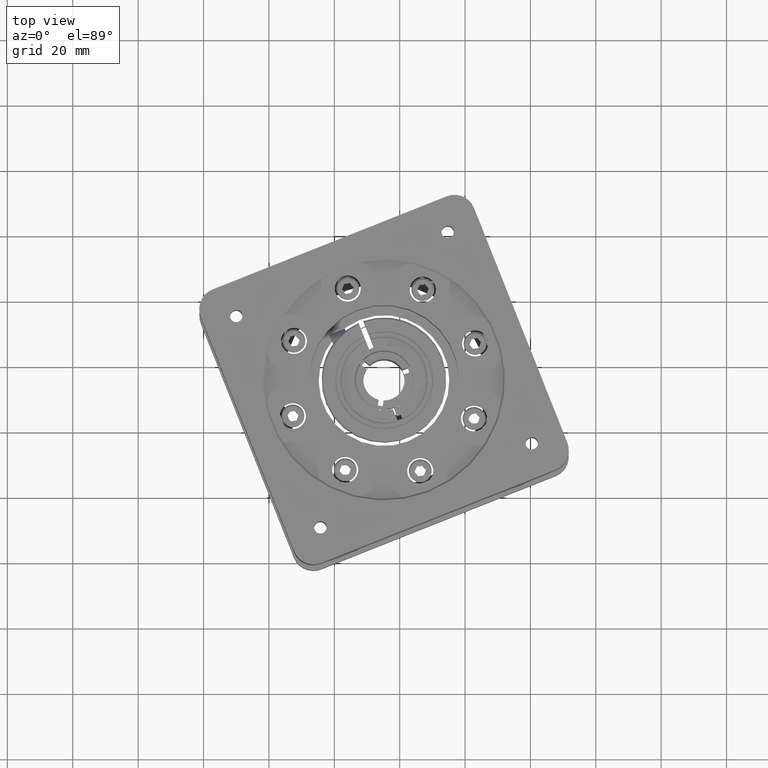
[diagram: clean part render]
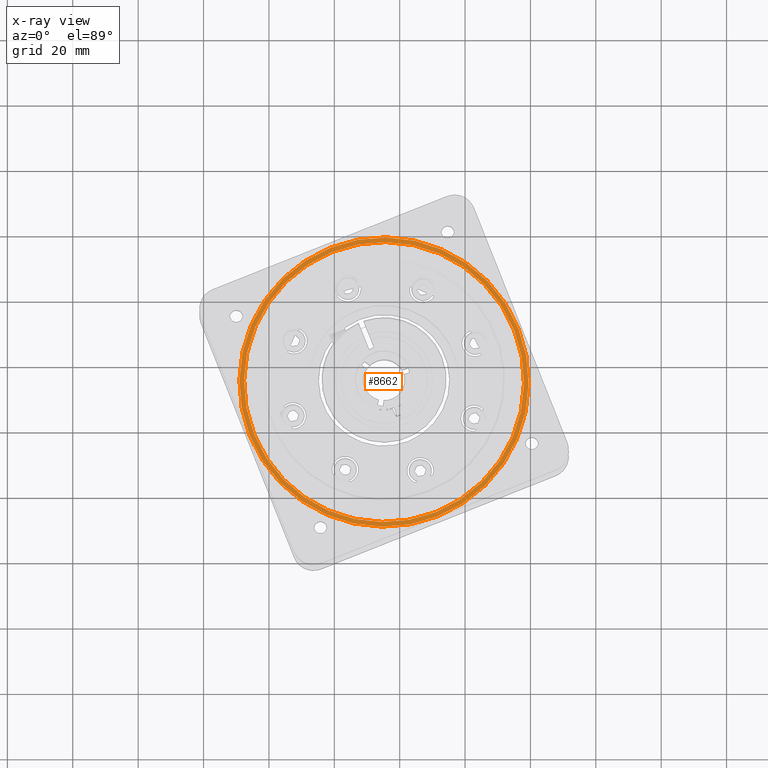
[diagram: x-ray — body ghosted, one internal face saturated and labeled with its STEP entity id]
A machine part, top view, then the same camera in x-ray: the body is ghosted and one INTERNAL B-rep face — a face not visible from any outside direction — is saturated and labeled: STEP entity #8662.
In plain terms, the highlighted planar face has unit normal (-0, -0, 1).
Its self-contained STEP definition (entity closure, byte-faithful):
#182 = ORIENTED_EDGE ( 'NONE', *, *, #11878, .F. ) ;
#256 = DIRECTION ( 'NONE',  ( 1.267242450402895730E-14, 1.075671488818361258E-14, -1.000000000000000000 ) ) ;
#263 = CIRCLE ( 'NONE', #4123, 44.25000000000000711 ) ;
#2071 = CARTESIAN_POINT ( 'NONE',  ( -61.97274178319740656, 132.9558945401735457, 173.8901539304251287 ) ) ;
#2311 = DIRECTION ( 'NONE',  ( 0.9999014065405876783, -0.01404197985165333423, 1.252012951212810717E-14 ) ) ;
#3007 = CARTESIAN_POINT ( 'NONE',  ( -104.7977191042055267, 133.5573013036359669, 173.8901539304245887 ) ) ;
#3102 = CARTESIAN_POINT ( 'NONE',  ( -60.55208186478451893, 132.9359436952003080, 173.8901539304251571 ) ) ;
#3194 = VERTEX_POINT ( 'NONE', #3102 ) ;
#3696 = VERTEX_POINT ( 'NONE', #8511 ) ;
#3715 = PLANE ( 'NONE',  #15051 ) ;
#3976 = EDGE_CURVE ( 'NONE', #3194, #14882, #14460, .T. ) ;
#4055 = DIRECTION ( 'NONE',  ( 0.9999014065405877894, -0.01404197985165315035, 1.254489293361758563E-14 ) ) ;
#4123 = AXIS2_PLACEMENT_3D ( 'NONE', #12904, #15497, #14371 ) ;
#4516 = DIRECTION ( 'NONE',  ( -1.267242450402895730E-14, -1.075671488818361258E-14, 1.000000000000000000 ) ) ;
#5052 = CARTESIAN_POINT ( 'NONE',  ( -149.0433563436265274, 134.1786589120717395, 173.8901539304240487 ) ) ;
#6096 = FACE_BOUND ( 'NONE', #12635, .T. ) ;
#6171 = DIRECTION ( 'NONE',  ( -1.267242450402895415E-14, -1.075671488818360943E-14, 1.000000000000000000 ) ) ;
#6283 = CARTESIAN_POINT ( 'NONE',  ( -155.6613423448364699, 194.4755334156081972, 173.8901539304245887 ) ) ;
#6530 = EDGE_CURVE ( 'NONE', #14882, #3194, #263, .T. ) ;
#8327 = DIRECTION ( 'NONE',  ( 0.9999014065405877894, -0.01404197985165333944, 1.231299993221796400E-14 ) ) ;
#8511 = CARTESIAN_POINT ( 'NONE',  ( -147.6226964252136327, 134.1587080670983880, 173.8901539304240487 ) ) ;
#8662 = ADVANCED_FACE ( 'NONE', ( #8724, #6096 ), #3715, .T. ) ;
#8724 = FACE_OUTER_BOUND ( 'NONE', #12803, .T. ) ;
#8771 = ORIENTED_EDGE ( 'NONE', *, *, #6530, .F. ) ;
#9044 = AXIS2_PLACEMENT_3D ( 'NONE', #3007, #4516, #8327 ) ;
#9153 = CIRCLE ( 'NONE', #12333, 42.82919999999997884 ) ;
#9458 = DIRECTION ( 'NONE',  ( 0.9999014065405877894, -0.01404197985165333944, 1.231299993221796400E-14 ) ) ;
#10765 = CARTESIAN_POINT ( 'NONE',  ( -104.7977191042055267, 133.5573013036359669, 173.8901539304245887 ) ) ;
#10942 = VERTEX_POINT ( 'NONE', #2071 ) ;
#10972 = ORIENTED_EDGE ( 'NONE', *, *, #3976, .F. ) ;
#11016 = AXIS2_PLACEMENT_3D ( 'NONE', #15726, #256, #4055 ) ;
#11878 = EDGE_CURVE ( 'NONE', #10942, #3696, #9153, .T. ) ;
#12333 = AXIS2_PLACEMENT_3D ( 'NONE', #10765, #15998, #9458 ) ;
#12635 = EDGE_LOOP ( 'NONE', ( #182, #16428 ) ) ;
#12803 = EDGE_LOOP ( 'NONE', ( #10972, #8771 ) ) ;
#12904 = CARTESIAN_POINT ( 'NONE',  ( -104.7977191042055267, 133.5573013036359669, 173.8901539304245887 ) ) ;
#14371 = DIRECTION ( 'NONE',  ( 0.9999014065405877894, -0.01404197985165315035, 1.254489293361758563E-14 ) ) ;
#14460 = CIRCLE ( 'NONE', #11016, 44.25000000000000711 ) ;
#14882 = VERTEX_POINT ( 'NONE', #5052 ) ;
#15051 = AXIS2_PLACEMENT_3D ( 'NONE', #6283, #6171, #2311 ) ;
#15497 = DIRECTION ( 'NONE',  ( 1.267242450402895730E-14, 1.075671488818361258E-14, -1.000000000000000000 ) ) ;
#15624 = CIRCLE ( 'NONE', #9044, 42.82919999999997884 ) ;
#15726 = CARTESIAN_POINT ( 'NONE',  ( -104.7977191042055267, 133.5573013036359669, 173.8901539304245887 ) ) ;
#15998 = DIRECTION ( 'NONE',  ( -1.267242450402895730E-14, -1.075671488818361258E-14, 1.000000000000000000 ) ) ;
#16428 = ORIENTED_EDGE ( 'NONE', *, *, #16549, .F. ) ;
#16549 = EDGE_CURVE ( 'NONE', #3696, #10942, #15624, .T. ) ;